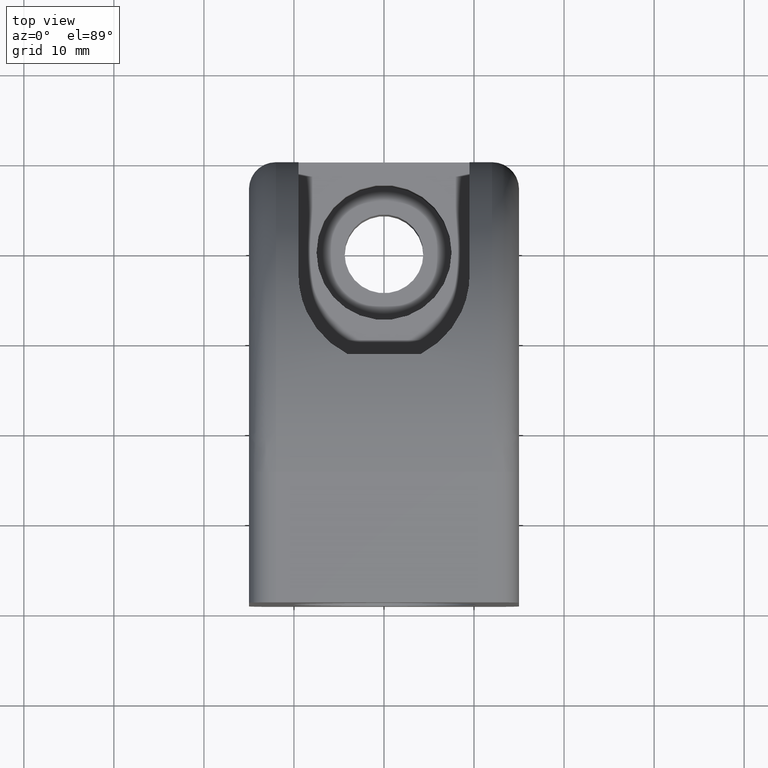
[diagram: clean part render]
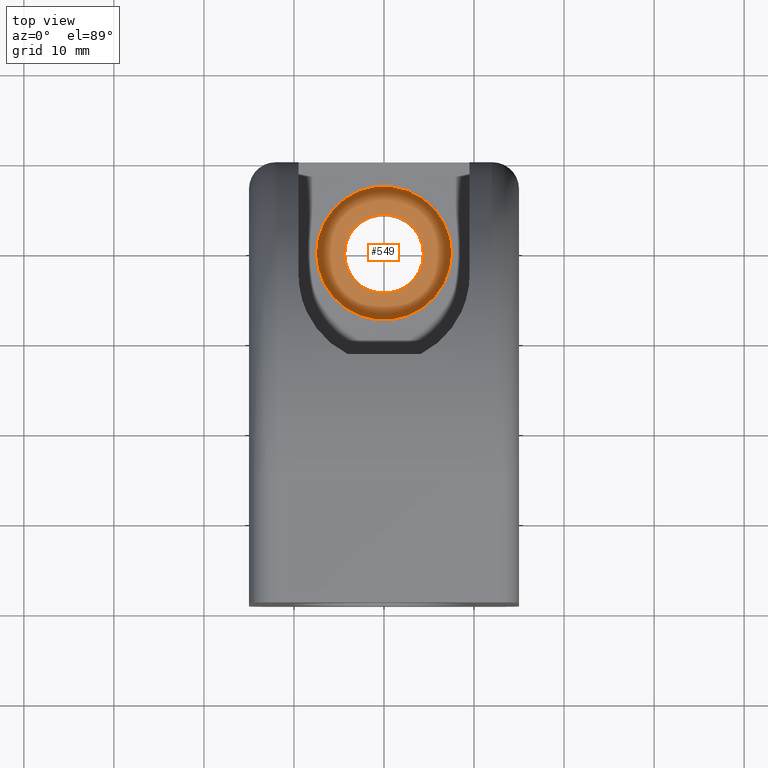
[diagram: same view with one face highlighted and labeled with its STEP entity id]
A machine part, top view. The second image highlights one B-rep face of the part: STEP entity #549.
In plain terms, the highlighted planar face has unit normal (0, 0, -1).
Its self-contained STEP definition (entity closure, byte-faithful):
#22=FACE_BOUND('',#170,.T.);
#131=FACE_OUTER_BOUND('',#169,.T.);
#169=EDGE_LOOP('',(#401));
#170=EDGE_LOOP('',(#402));
#209=CIRCLE('',#593,7.5);
#211=CIRCLE('',#596,4.375);
#253=VERTEX_POINT('',#880);
#255=VERTEX_POINT('',#885);
#310=EDGE_CURVE('',#253,#253,#209,.T.);
#312=EDGE_CURVE('',#255,#255,#211,.T.);
#401=ORIENTED_EDGE('',*,*,#310,.T.);
#402=ORIENTED_EDGE('',*,*,#312,.F.);
#530=PLANE('',#597);
#549=ADVANCED_FACE('',(#131,#22),#530,.F.);
#593=AXIS2_PLACEMENT_3D('',#881,#689,#690);
#596=AXIS2_PLACEMENT_3D('',#886,#695,#696);
#597=AXIS2_PLACEMENT_3D('',#887,#697,#698);
#689=DIRECTION('center_axis',(0.,0.,1.));
#690=DIRECTION('ref_axis',(-1.,0.,0.));
#695=DIRECTION('center_axis',(0.,0.,1.));
#696=DIRECTION('ref_axis',(-1.,0.,0.));
#697=DIRECTION('center_axis',(0.,0.,-1.));
#698=DIRECTION('ref_axis',(-1.,0.,0.));
#880=CARTESIAN_POINT('',(7.5,0.,11.6000000000004));
#881=CARTESIAN_POINT('Origin',(-1.285879E-15,0.,11.6000000000004));
#885=CARTESIAN_POINT('',(4.375,0.,11.6000000000004));
#886=CARTESIAN_POINT('Origin',(-5.75584E-16,0.,11.6000000000004));
#887=CARTESIAN_POINT('Origin',(15.,15.,11.6000000000004));